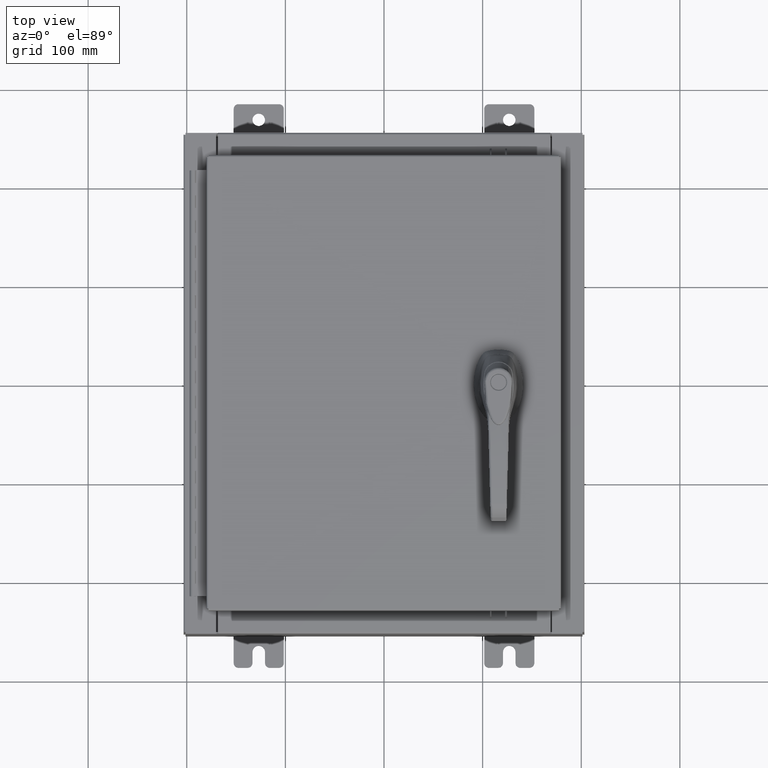
[diagram: clean part render]
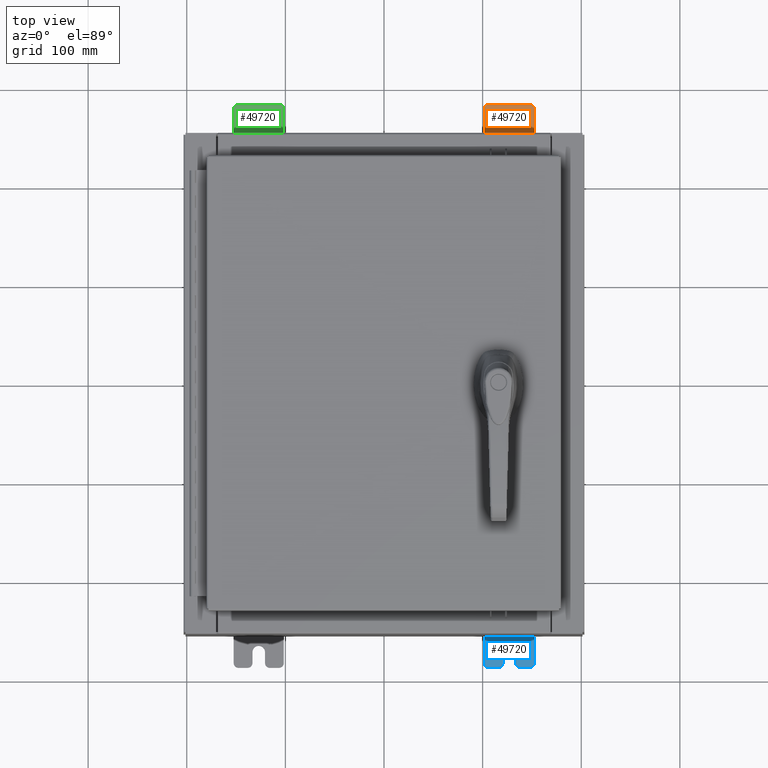
[diagram: same view with three faces highlighted in distinct colors, each labeled with its STEP entity id]
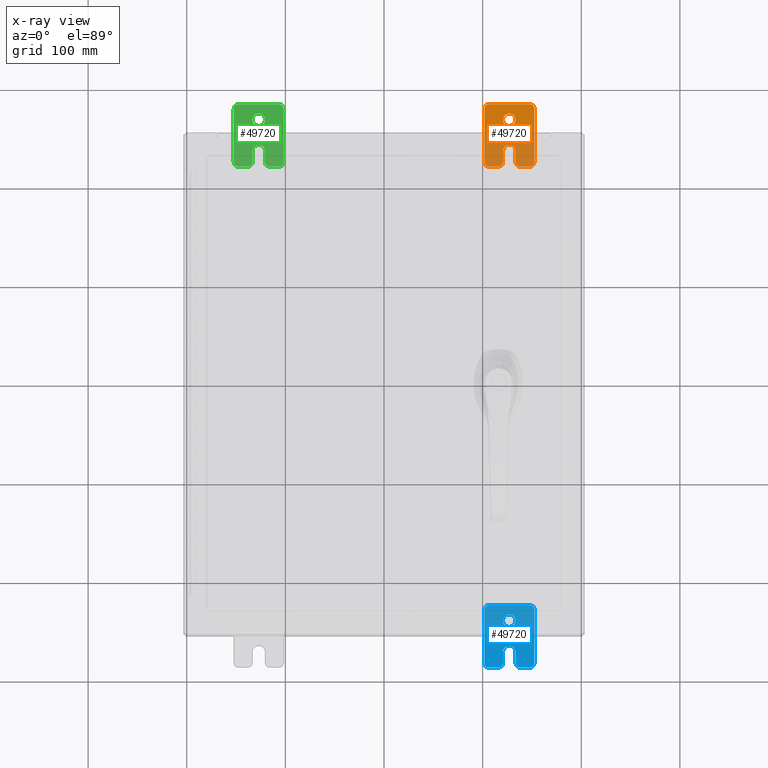
[diagram: x-ray of the same camera — body ghosted, the three highlighted faces saturated]
A machine part, top view with three faces highlighted in distinct colors.
The next image is the same camera in x-ray (body ghosted, the three faces saturated) — at least one of them is partly hidden behind the body in this view.
Their STEP definitions:

[orange] entity #49720 — the highlighted planar face has unit normal (0, 0, 1).
#481 = EDGE_CURVE ( 'NONE', #62604, #34318, #47362, .T. ) ;
#1160 = CARTESIAN_POINT ( 'NONE',  ( 0.0000000000000000000, -1.060000000000003400, -0.4400000000000005000 ) ) ;
#1921 = VERTEX_POINT ( 'NONE', #33607 ) ;
#2991 = AXIS2_PLACEMENT_3D ( 'NONE', #13137, #72066, #21588 ) ;
#3061 = ORIENTED_EDGE ( 'NONE', *, *, #70109, .T. ) ;
#3523 = CARTESIAN_POINT ( 'NONE',  ( 0.0000000000000000000, -1.060000000000004500, -1.000000000000006400 ) ) ;
#4193 = DIRECTION ( 'NONE',  ( -0.0000000000000000000, 0.0000000000000000000, -1.000000000000000000 ) ) ;
#4245 = VERTEX_POINT ( 'NONE', #107363 ) ;
#4334 = LINE ( 'NONE', #71824, #26743 ) ;
#4597 = CARTESIAN_POINT ( 'NONE',  ( 0.0000000000000000000, -1.250000000000002200, 0.9999999999999992200 ) ) ;
#4652 = FACE_BOUND ( 'NONE', #55792, .T. ) ;
#5022 = CARTESIAN_POINT ( 'NONE',  ( 0.0000000000000000000, -1.250000000000002200, 0.9999999999999992200 ) ) ;
#5243 = VERTEX_POINT ( 'NONE', #35462 ) ;
#5659 = DIRECTION ( 'NONE',  ( -5.163192708025533800E-017, 0.0000000000000000000, -1.000000000000000000 ) ) ;
#6952 = LINE ( 'NONE', #31407, #71581 ) ;
#7288 = FACE_OUTER_BOUND ( 'NONE', #72706, .T. ) ;
#8271 = DIRECTION ( 'NONE',  ( 0.0000000000000000000, 0.0000000000000000000, -1.000000000000000000 ) ) ;
#8613 = AXIS2_PLACEMENT_3D ( 'NONE', #106686, #56127, #5659 ) ;
#8744 = EDGE_CURVE ( 'NONE', #1921, #5243, #37294, .T. ) ;
#9646 = DIRECTION ( 'NONE',  ( 0.0000000000000000000, 0.0000000000000000000, -1.000000000000000000 ) ) ;
#11596 = VERTEX_POINT ( 'NONE', #59253 ) ;
#12673 = EDGE_CURVE ( 'NONE', #87092, #54416, #26256, .T. ) ;
#13088 = CARTESIAN_POINT ( 'NONE',  ( 6.829619984160658000E-017, -1.250000000000003800, 0.2500000000000005000 ) ) ;
#13137 = CARTESIAN_POINT ( 'NONE',  ( 0.0000000000000000000, -1.060000000000002100, 0.4400000000000016700 ) ) ;
#13161 = VERTEX_POINT ( 'NONE', #27426 ) ;
#13535 = ORIENTED_EDGE ( 'NONE', *, *, #14613, .T. ) ;
#14613 = EDGE_CURVE ( 'NONE', #34318, #18750, #6952, .T. ) ;
#15250 = DIRECTION ( 'NONE',  ( 0.0000000000000000000, -1.639108796198553600E-015, -1.000000000000000000 ) ) ;
#16067 = AXIS2_PLACEMENT_3D ( 'NONE', #86448, #35909, #94929 ) ;
#16603 = ORIENTED_EDGE ( 'NONE', *, *, #37401, .T. ) ;
#18226 = DIRECTION ( 'NONE',  ( 1.000000000000000000, 0.0000000000000000000, -0.0000000000000000000 ) ) ;
#18750 = VERTEX_POINT ( 'NONE', #34813 ) ;
#21278 = CARTESIAN_POINT ( 'NONE',  ( 4.780733988912460100E-016, -0.6249999999999993300, 5.858939755051854500E-017 ) ) ;
#21588 = DIRECTION ( 'NONE',  ( 0.0000000000000000000, 0.0000000000000000000, -1.000000000000000000 ) ) ;
#22034 = ORIENTED_EDGE ( 'NONE', *, *, #83814, .T. ) ;
#22437 = DIRECTION ( 'NONE',  ( 0.0000000000000000000, 1.639108796198553600E-015, 1.000000000000000000 ) ) ;
#24350 = EDGE_CURVE ( 'NONE', #5243, #1921, #58768, .T. ) ;
#24579 = CARTESIAN_POINT ( 'NONE',  ( 0.0000000000000000000, -0.6249999999999992200, 0.2500000000000005000 ) ) ;
#26256 = CIRCLE ( 'NONE', #70932, 0.2499999999999999200 ) ;
#26743 = VECTOR ( 'NONE', #88509, 39.37007874015748100 ) ;
#27220 = CARTESIAN_POINT ( 'NONE',  ( 4.039428427013647300E-016, 0.6249999999999992200, -9.783840404509077400E-018 ) ) ;
#27426 = CARTESIAN_POINT ( 'NONE',  ( 0.0000000000000000000, 1.249999999999997300, 0.8099999999999935000 ) ) ;
#28971 = CARTESIAN_POINT ( 'NONE',  ( 4.780733988912460100E-016, -0.6249999999999993300, -0.2499999999999993900 ) ) ;
#29200 = CARTESIAN_POINT ( 'NONE',  ( 0.0000000000000000000, 1.059999999999996500, 0.9999999999999953400 ) ) ;
#29610 = EDGE_CURVE ( 'NONE', #75932, #85076, #4334, .T. ) ;
#29757 = DIRECTION ( 'NONE',  ( -6.523827964459551700E-016, -1.000000000000000000, 0.0000000000000000000 ) ) ;
#30115 = DIRECTION ( 'NONE',  ( 0.0000000000000000000, -1.639108796198553600E-015, -1.000000000000000000 ) ) ;
#30879 = VERTEX_POINT ( 'NONE', #69683 ) ;
#31407 = CARTESIAN_POINT ( 'NONE',  ( 0.0000000000000000000, -1.250000000000005600, -1.000000000000006200 ) ) ;
#33607 = CARTESIAN_POINT ( 'NONE',  ( 3.910348609313009100E-016, 0.6249999999999992200, -0.2499999999999999200 ) ) ;
#34318 = VERTEX_POINT ( 'NONE', #3523 ) ;
#34813 = CARTESIAN_POINT ( 'NONE',  ( 0.0000000000000000000, 1.059999999999993400, -1.000000000000010000 ) ) ;
#35031 = ORIENTED_EDGE ( 'NONE', *, *, #97097, .T. ) ;
#35462 = CARTESIAN_POINT ( 'NONE',  ( 4.168508244714285900E-016, 0.6249999999999992200, 0.2499999999999999200 ) ) ;
#35669 = DIRECTION ( 'NONE',  ( -5.163192708025533800E-017, 0.0000000000000000000, -1.000000000000000000 ) ) ;
#35909 = DIRECTION ( 'NONE',  ( 1.000000000000000000, 0.0000000000000000000, -0.0000000000000000000 ) ) ;
#36790 = ORIENTED_EDGE ( 'NONE', *, *, #72073, .T. ) ;
#37294 = CIRCLE ( 'NONE', #8613, 0.2499999999999999200 ) ;
#37401 = EDGE_CURVE ( 'NONE', #85076, #99743, #105072, .T. ) ;
#37438 = DIRECTION ( 'NONE',  ( -6.556435184794182400E-016, -1.000000000000000000, -1.639108796198545600E-016 ) ) ;
#37477 = DIRECTION ( 'NONE',  ( 1.000000000000000000, 0.0000000000000000000, -0.0000000000000000000 ) ) ;
#37590 = CARTESIAN_POINT ( 'NONE',  ( 4.780733988912460100E-016, -0.6249999999999993300, -0.2499999999999998600 ) ) ;
#37651 = LINE ( 'NONE', #5022, #54744 ) ;
#38915 = EDGE_CURVE ( 'NONE', #18750, #72180, #97159, .T. ) ;
#40899 = LINE ( 'NONE', #81407, #63323 ) ;
#41752 = CARTESIAN_POINT ( 'NONE',  ( 0.0000000000000000000, 1.249999999999994700, -0.8100000000000092700 ) ) ;
#42564 = ORIENTED_EDGE ( 'NONE', *, *, #24350, .F. ) ;
#43312 = AXIS2_PLACEMENT_3D ( 'NONE', #109264, #58724, #8271 ) ;
#46215 = CARTESIAN_POINT ( 'NONE',  ( 0.0000000000000000000, 0.0000000000000000000, 0.0000000000000000000 ) ) ;
#47362 = CIRCLE ( 'NONE', #16067, 0.1900000000000011100 ) ;
#49720 = ADVANCED_FACE ( 'NONE', ( #4652, #7288 ), #96744, .T. ) ;
#50529 = ORIENTED_EDGE ( 'NONE', *, *, #481, .T. ) ;
#50757 = CIRCLE ( 'NONE', #102429, 0.1900000000000011100 ) ;
#50975 = EDGE_CURVE ( 'NONE', #54416, #4245, #58542, .T. ) ;
#52108 = ORIENTED_EDGE ( 'NONE', *, *, #12673, .T. ) ;
#53402 = CARTESIAN_POINT ( 'NONE',  ( 0.0000000000000000000, -1.060000000000001200, 0.9999999999999988900 ) ) ;
#54416 = VERTEX_POINT ( 'NONE', #37590 ) ;
#54657 = DIRECTION ( 'NONE',  ( 1.000000000000000000, 0.0000000000000000000, -0.0000000000000000000 ) ) ;
#54744 = VECTOR ( 'NONE', #30115, 39.37007874015748100 ) ;
#55792 = EDGE_LOOP ( 'NONE', ( #98013, #42564 ) ) ;
#55889 = VECTOR ( 'NONE', #37438, 39.37007874015748100 ) ;
#56127 = DIRECTION ( 'NONE',  ( 1.000000000000000000, -0.0000000000000000000, -5.163192708025532000E-017 ) ) ;
#57395 = ORIENTED_EDGE ( 'NONE', *, *, #50975, .T. ) ;
#57405 = VERTEX_POINT ( 'NONE', #57727 ) ;
#57727 = CARTESIAN_POINT ( 'NONE',  ( 1.928684683526972300E-016, -1.060000000000002100, 0.2500000000000005000 ) ) ;
#58542 = LINE ( 'NONE', #28971, #55889 ) ;
#58724 = DIRECTION ( 'NONE',  ( 1.000000000000000000, 0.0000000000000000000, -0.0000000000000000000 ) ) ;
#58768 = CIRCLE ( 'NONE', #63160, 0.2499999999999999200 ) ;
#59253 = CARTESIAN_POINT ( 'NONE',  ( 0.0000000000000000000, -1.250000000000003100, 0.4400000000000020000 ) ) ;
#59584 = AXIS2_PLACEMENT_3D ( 'NONE', #88039, #37477, #96485 ) ;
#60119 = DIRECTION ( 'NONE',  ( 1.000000000000000000, 0.0000000000000000000, -0.0000000000000000000 ) ) ;
#60191 = VECTOR ( 'NONE', #63520, 39.37007874015748100 ) ;
#60371 = EDGE_CURVE ( 'NONE', #13161, #75932, #80758, .T. ) ;
#62604 = VERTEX_POINT ( 'NONE', #69588 ) ;
#62865 = LINE ( 'NONE', #13088, #60191 ) ;
#63023 = LINE ( 'NONE', #4597, #107878 ) ;
#63160 = AXIS2_PLACEMENT_3D ( 'NONE', #27220, #86205, #35669 ) ;
#63323 = VECTOR ( 'NONE', #22437, 39.37007874015748100 ) ;
#63520 = DIRECTION ( 'NONE',  ( 6.556435184794182400E-016, 1.000000000000000000, 0.0000000000000000000 ) ) ;
#64856 = ORIENTED_EDGE ( 'NONE', *, *, #103186, .T. ) ;
#65171 = CARTESIAN_POINT ( 'NONE',  ( 0.0000000000000000000, -1.250000000000002400, 0.8099999999999980500 ) ) ;
#68485 = CIRCLE ( 'NONE', #2991, 0.1900000000000011400 ) ;
#68671 = CARTESIAN_POINT ( 'NONE',  ( 0.0000000000000000000, 1.059999999999996300, 0.8099999999999938400 ) ) ;
#69333 = AXIS2_PLACEMENT_3D ( 'NONE', #46215, #54657, #4193 ) ;
#69588 = CARTESIAN_POINT ( 'NONE',  ( 0.0000000000000000000, -1.250000000000005300, -0.8100000000000047200 ) ) ;
#69683 = CARTESIAN_POINT ( 'NONE',  ( 0.0000000000000000000, -1.250000000000004700, -0.4400000000000002200 ) ) ;
#70109 = EDGE_CURVE ( 'NONE', #11596, #57405, #68485, .T. ) ;
#70932 = AXIS2_PLACEMENT_3D ( 'NONE', #21278, #80249, #29757 ) ;
#71581 = VECTOR ( 'NONE', #107341, 39.37007874015748100 ) ;
#71824 = CARTESIAN_POINT ( 'NONE',  ( 0.0000000000000000000, 1.249999999999997600, 0.9999999999999951200 ) ) ;
#72066 = DIRECTION ( 'NONE',  ( 1.000000000000000000, 0.0000000000000000000, -0.0000000000000000000 ) ) ;
#72073 = EDGE_CURVE ( 'NONE', #99743, #11596, #63023, .T. ) ;
#72180 = VERTEX_POINT ( 'NONE', #41752 ) ;
#72706 = EDGE_LOOP ( 'NONE', ( #73115, #16603, #36790, #3061, #95287, #52108, #57395, #22034, #35031, #50529, #13535, #80788, #64856, #95490 ) ) ;
#73115 = ORIENTED_EDGE ( 'NONE', *, *, #29610, .T. ) ;
#75932 = VERTEX_POINT ( 'NONE', #29200 ) ;
#77171 = DIRECTION ( 'NONE',  ( 0.0000000000000000000, 0.0000000000000000000, -1.000000000000000000 ) ) ;
#80249 = DIRECTION ( 'NONE',  ( -1.000000000000000000, 6.523827964459549700E-016, 5.163192708025532000E-017 ) ) ;
#80758 = CIRCLE ( 'NONE', #85333, 0.1900000000000011100 ) ;
#80788 = ORIENTED_EDGE ( 'NONE', *, *, #38915, .T. ) ;
#81407 = CARTESIAN_POINT ( 'NONE',  ( 0.0000000000000000000, 1.249999999999994200, -1.000000000000010400 ) ) ;
#82155 = EDGE_CURVE ( 'NONE', #57405, #87092, #62865, .T. ) ;
#83814 = EDGE_CURVE ( 'NONE', #4245, #30879, #50757, .T. ) ;
#85076 = VERTEX_POINT ( 'NONE', #53402 ) ;
#85333 = AXIS2_PLACEMENT_3D ( 'NONE', #68671, #18226, #77171 ) ;
#86205 = DIRECTION ( 'NONE',  ( 1.000000000000000000, -0.0000000000000000000, -5.163192708025532000E-017 ) ) ;
#86448 = CARTESIAN_POINT ( 'NONE',  ( 0.0000000000000000000, -1.060000000000004100, -0.8100000000000050500 ) ) ;
#87092 = VERTEX_POINT ( 'NONE', #24579 ) ;
#88039 = CARTESIAN_POINT ( 'NONE',  ( 0.0000000000000000000, 1.059999999999993600, -0.8100000000000089400 ) ) ;
#88509 = DIRECTION ( 'NONE',  ( 0.0000000000000000000, -1.000000000000000000, 1.639108796198558100E-015 ) ) ;
#94929 = DIRECTION ( 'NONE',  ( 0.0000000000000000000, 0.0000000000000000000, -1.000000000000000000 ) ) ;
#95287 = ORIENTED_EDGE ( 'NONE', *, *, #82155, .T. ) ;
#95490 = ORIENTED_EDGE ( 'NONE', *, *, #60371, .T. ) ;
#96485 = DIRECTION ( 'NONE',  ( 0.0000000000000000000, 0.0000000000000000000, -1.000000000000000000 ) ) ;
#96744 = PLANE ( 'NONE',  #69333 ) ;
#97097 = EDGE_CURVE ( 'NONE', #30879, #62604, #37651, .T. ) ;
#97159 = CIRCLE ( 'NONE', #59584, 0.1900000000000011100 ) ;
#98013 = ORIENTED_EDGE ( 'NONE', *, *, #8744, .F. ) ;
#99743 = VERTEX_POINT ( 'NONE', #65171 ) ;
#102429 = AXIS2_PLACEMENT_3D ( 'NONE', #1160, #60119, #9646 ) ;
#103186 = EDGE_CURVE ( 'NONE', #72180, #13161, #40899, .T. ) ;
#105072 = CIRCLE ( 'NONE', #43312, 0.1900000000000011100 ) ;
#106686 = CARTESIAN_POINT ( 'NONE',  ( 4.039428427013647300E-016, 0.6249999999999992200, -9.783840404509077400E-018 ) ) ;
#107341 = DIRECTION ( 'NONE',  ( 0.0000000000000000000, 1.000000000000000000, -1.639108796198558100E-015 ) ) ;
#107363 = CARTESIAN_POINT ( 'NONE',  ( 1.928684683526964400E-016, -1.060000000000003400, -0.2499999999999994400 ) ) ;
#107878 = VECTOR ( 'NONE', #15250, 39.37007874015748100 ) ;
#109264 = CARTESIAN_POINT ( 'NONE',  ( 0.0000000000000000000, -1.060000000000001600, 0.8099999999999978300 ) ) ;

[blue] entity #49720 — the highlighted planar face has unit normal (0, 0, 1).
#481 = EDGE_CURVE ( 'NONE', #62604, #34318, #47362, .T. ) ;
#1160 = CARTESIAN_POINT ( 'NONE',  ( 0.0000000000000000000, -1.060000000000003400, -0.4400000000000005000 ) ) ;
#1921 = VERTEX_POINT ( 'NONE', #33607 ) ;
#2991 = AXIS2_PLACEMENT_3D ( 'NONE', #13137, #72066, #21588 ) ;
#3061 = ORIENTED_EDGE ( 'NONE', *, *, #70109, .T. ) ;
#3523 = CARTESIAN_POINT ( 'NONE',  ( 0.0000000000000000000, -1.060000000000004500, -1.000000000000006400 ) ) ;
#4193 = DIRECTION ( 'NONE',  ( -0.0000000000000000000, 0.0000000000000000000, -1.000000000000000000 ) ) ;
#4245 = VERTEX_POINT ( 'NONE', #107363 ) ;
#4334 = LINE ( 'NONE', #71824, #26743 ) ;
#4597 = CARTESIAN_POINT ( 'NONE',  ( 0.0000000000000000000, -1.250000000000002200, 0.9999999999999992200 ) ) ;
#4652 = FACE_BOUND ( 'NONE', #55792, .T. ) ;
#5022 = CARTESIAN_POINT ( 'NONE',  ( 0.0000000000000000000, -1.250000000000002200, 0.9999999999999992200 ) ) ;
#5243 = VERTEX_POINT ( 'NONE', #35462 ) ;
#5659 = DIRECTION ( 'NONE',  ( -5.163192708025533800E-017, 0.0000000000000000000, -1.000000000000000000 ) ) ;
#6952 = LINE ( 'NONE', #31407, #71581 ) ;
#7288 = FACE_OUTER_BOUND ( 'NONE', #72706, .T. ) ;
#8271 = DIRECTION ( 'NONE',  ( 0.0000000000000000000, 0.0000000000000000000, -1.000000000000000000 ) ) ;
#8613 = AXIS2_PLACEMENT_3D ( 'NONE', #106686, #56127, #5659 ) ;
#8744 = EDGE_CURVE ( 'NONE', #1921, #5243, #37294, .T. ) ;
#9646 = DIRECTION ( 'NONE',  ( 0.0000000000000000000, 0.0000000000000000000, -1.000000000000000000 ) ) ;
#11596 = VERTEX_POINT ( 'NONE', #59253 ) ;
#12673 = EDGE_CURVE ( 'NONE', #87092, #54416, #26256, .T. ) ;
#13088 = CARTESIAN_POINT ( 'NONE',  ( 6.829619984160658000E-017, -1.250000000000003800, 0.2500000000000005000 ) ) ;
#13137 = CARTESIAN_POINT ( 'NONE',  ( 0.0000000000000000000, -1.060000000000002100, 0.4400000000000016700 ) ) ;
#13161 = VERTEX_POINT ( 'NONE', #27426 ) ;
#13535 = ORIENTED_EDGE ( 'NONE', *, *, #14613, .T. ) ;
#14613 = EDGE_CURVE ( 'NONE', #34318, #18750, #6952, .T. ) ;
#15250 = DIRECTION ( 'NONE',  ( 0.0000000000000000000, -1.639108796198553600E-015, -1.000000000000000000 ) ) ;
#16067 = AXIS2_PLACEMENT_3D ( 'NONE', #86448, #35909, #94929 ) ;
#16603 = ORIENTED_EDGE ( 'NONE', *, *, #37401, .T. ) ;
#18226 = DIRECTION ( 'NONE',  ( 1.000000000000000000, 0.0000000000000000000, -0.0000000000000000000 ) ) ;
#18750 = VERTEX_POINT ( 'NONE', #34813 ) ;
#21278 = CARTESIAN_POINT ( 'NONE',  ( 4.780733988912460100E-016, -0.6249999999999993300, 5.858939755051854500E-017 ) ) ;
#21588 = DIRECTION ( 'NONE',  ( 0.0000000000000000000, 0.0000000000000000000, -1.000000000000000000 ) ) ;
#22034 = ORIENTED_EDGE ( 'NONE', *, *, #83814, .T. ) ;
#22437 = DIRECTION ( 'NONE',  ( 0.0000000000000000000, 1.639108796198553600E-015, 1.000000000000000000 ) ) ;
#24350 = EDGE_CURVE ( 'NONE', #5243, #1921, #58768, .T. ) ;
#24579 = CARTESIAN_POINT ( 'NONE',  ( 0.0000000000000000000, -0.6249999999999992200, 0.2500000000000005000 ) ) ;
#26256 = CIRCLE ( 'NONE', #70932, 0.2499999999999999200 ) ;
#26743 = VECTOR ( 'NONE', #88509, 39.37007874015748100 ) ;
#27220 = CARTESIAN_POINT ( 'NONE',  ( 4.039428427013647300E-016, 0.6249999999999992200, -9.783840404509077400E-018 ) ) ;
#27426 = CARTESIAN_POINT ( 'NONE',  ( 0.0000000000000000000, 1.249999999999997300, 0.8099999999999935000 ) ) ;
#28971 = CARTESIAN_POINT ( 'NONE',  ( 4.780733988912460100E-016, -0.6249999999999993300, -0.2499999999999993900 ) ) ;
#29200 = CARTESIAN_POINT ( 'NONE',  ( 0.0000000000000000000, 1.059999999999996500, 0.9999999999999953400 ) ) ;
#29610 = EDGE_CURVE ( 'NONE', #75932, #85076, #4334, .T. ) ;
#29757 = DIRECTION ( 'NONE',  ( -6.523827964459551700E-016, -1.000000000000000000, 0.0000000000000000000 ) ) ;
#30115 = DIRECTION ( 'NONE',  ( 0.0000000000000000000, -1.639108796198553600E-015, -1.000000000000000000 ) ) ;
#30879 = VERTEX_POINT ( 'NONE', #69683 ) ;
#31407 = CARTESIAN_POINT ( 'NONE',  ( 0.0000000000000000000, -1.250000000000005600, -1.000000000000006200 ) ) ;
#33607 = CARTESIAN_POINT ( 'NONE',  ( 3.910348609313009100E-016, 0.6249999999999992200, -0.2499999999999999200 ) ) ;
#34318 = VERTEX_POINT ( 'NONE', #3523 ) ;
#34813 = CARTESIAN_POINT ( 'NONE',  ( 0.0000000000000000000, 1.059999999999993400, -1.000000000000010000 ) ) ;
#35031 = ORIENTED_EDGE ( 'NONE', *, *, #97097, .T. ) ;
#35462 = CARTESIAN_POINT ( 'NONE',  ( 4.168508244714285900E-016, 0.6249999999999992200, 0.2499999999999999200 ) ) ;
#35669 = DIRECTION ( 'NONE',  ( -5.163192708025533800E-017, 0.0000000000000000000, -1.000000000000000000 ) ) ;
#35909 = DIRECTION ( 'NONE',  ( 1.000000000000000000, 0.0000000000000000000, -0.0000000000000000000 ) ) ;
#36790 = ORIENTED_EDGE ( 'NONE', *, *, #72073, .T. ) ;
#37294 = CIRCLE ( 'NONE', #8613, 0.2499999999999999200 ) ;
#37401 = EDGE_CURVE ( 'NONE', #85076, #99743, #105072, .T. ) ;
#37438 = DIRECTION ( 'NONE',  ( -6.556435184794182400E-016, -1.000000000000000000, -1.639108796198545600E-016 ) ) ;
#37477 = DIRECTION ( 'NONE',  ( 1.000000000000000000, 0.0000000000000000000, -0.0000000000000000000 ) ) ;
#37590 = CARTESIAN_POINT ( 'NONE',  ( 4.780733988912460100E-016, -0.6249999999999993300, -0.2499999999999998600 ) ) ;
#37651 = LINE ( 'NONE', #5022, #54744 ) ;
#38915 = EDGE_CURVE ( 'NONE', #18750, #72180, #97159, .T. ) ;
#40899 = LINE ( 'NONE', #81407, #63323 ) ;
#41752 = CARTESIAN_POINT ( 'NONE',  ( 0.0000000000000000000, 1.249999999999994700, -0.8100000000000092700 ) ) ;
#42564 = ORIENTED_EDGE ( 'NONE', *, *, #24350, .F. ) ;
#43312 = AXIS2_PLACEMENT_3D ( 'NONE', #109264, #58724, #8271 ) ;
#46215 = CARTESIAN_POINT ( 'NONE',  ( 0.0000000000000000000, 0.0000000000000000000, 0.0000000000000000000 ) ) ;
#47362 = CIRCLE ( 'NONE', #16067, 0.1900000000000011100 ) ;
#49720 = ADVANCED_FACE ( 'NONE', ( #4652, #7288 ), #96744, .T. ) ;
#50529 = ORIENTED_EDGE ( 'NONE', *, *, #481, .T. ) ;
#50757 = CIRCLE ( 'NONE', #102429, 0.1900000000000011100 ) ;
#50975 = EDGE_CURVE ( 'NONE', #54416, #4245, #58542, .T. ) ;
#52108 = ORIENTED_EDGE ( 'NONE', *, *, #12673, .T. ) ;
#53402 = CARTESIAN_POINT ( 'NONE',  ( 0.0000000000000000000, -1.060000000000001200, 0.9999999999999988900 ) ) ;
#54416 = VERTEX_POINT ( 'NONE', #37590 ) ;
#54657 = DIRECTION ( 'NONE',  ( 1.000000000000000000, 0.0000000000000000000, -0.0000000000000000000 ) ) ;
#54744 = VECTOR ( 'NONE', #30115, 39.37007874015748100 ) ;
#55792 = EDGE_LOOP ( 'NONE', ( #98013, #42564 ) ) ;
#55889 = VECTOR ( 'NONE', #37438, 39.37007874015748100 ) ;
#56127 = DIRECTION ( 'NONE',  ( 1.000000000000000000, -0.0000000000000000000, -5.163192708025532000E-017 ) ) ;
#57395 = ORIENTED_EDGE ( 'NONE', *, *, #50975, .T. ) ;
#57405 = VERTEX_POINT ( 'NONE', #57727 ) ;
#57727 = CARTESIAN_POINT ( 'NONE',  ( 1.928684683526972300E-016, -1.060000000000002100, 0.2500000000000005000 ) ) ;
#58542 = LINE ( 'NONE', #28971, #55889 ) ;
#58724 = DIRECTION ( 'NONE',  ( 1.000000000000000000, 0.0000000000000000000, -0.0000000000000000000 ) ) ;
#58768 = CIRCLE ( 'NONE', #63160, 0.2499999999999999200 ) ;
#59253 = CARTESIAN_POINT ( 'NONE',  ( 0.0000000000000000000, -1.250000000000003100, 0.4400000000000020000 ) ) ;
#59584 = AXIS2_PLACEMENT_3D ( 'NONE', #88039, #37477, #96485 ) ;
#60119 = DIRECTION ( 'NONE',  ( 1.000000000000000000, 0.0000000000000000000, -0.0000000000000000000 ) ) ;
#60191 = VECTOR ( 'NONE', #63520, 39.37007874015748100 ) ;
#60371 = EDGE_CURVE ( 'NONE', #13161, #75932, #80758, .T. ) ;
#62604 = VERTEX_POINT ( 'NONE', #69588 ) ;
#62865 = LINE ( 'NONE', #13088, #60191 ) ;
#63023 = LINE ( 'NONE', #4597, #107878 ) ;
#63160 = AXIS2_PLACEMENT_3D ( 'NONE', #27220, #86205, #35669 ) ;
#63323 = VECTOR ( 'NONE', #22437, 39.37007874015748100 ) ;
#63520 = DIRECTION ( 'NONE',  ( 6.556435184794182400E-016, 1.000000000000000000, 0.0000000000000000000 ) ) ;
#64856 = ORIENTED_EDGE ( 'NONE', *, *, #103186, .T. ) ;
#65171 = CARTESIAN_POINT ( 'NONE',  ( 0.0000000000000000000, -1.250000000000002400, 0.8099999999999980500 ) ) ;
#68485 = CIRCLE ( 'NONE', #2991, 0.1900000000000011400 ) ;
#68671 = CARTESIAN_POINT ( 'NONE',  ( 0.0000000000000000000, 1.059999999999996300, 0.8099999999999938400 ) ) ;
#69333 = AXIS2_PLACEMENT_3D ( 'NONE', #46215, #54657, #4193 ) ;
#69588 = CARTESIAN_POINT ( 'NONE',  ( 0.0000000000000000000, -1.250000000000005300, -0.8100000000000047200 ) ) ;
#69683 = CARTESIAN_POINT ( 'NONE',  ( 0.0000000000000000000, -1.250000000000004700, -0.4400000000000002200 ) ) ;
#70109 = EDGE_CURVE ( 'NONE', #11596, #57405, #68485, .T. ) ;
#70932 = AXIS2_PLACEMENT_3D ( 'NONE', #21278, #80249, #29757 ) ;
#71581 = VECTOR ( 'NONE', #107341, 39.37007874015748100 ) ;
#71824 = CARTESIAN_POINT ( 'NONE',  ( 0.0000000000000000000, 1.249999999999997600, 0.9999999999999951200 ) ) ;
#72066 = DIRECTION ( 'NONE',  ( 1.000000000000000000, 0.0000000000000000000, -0.0000000000000000000 ) ) ;
#72073 = EDGE_CURVE ( 'NONE', #99743, #11596, #63023, .T. ) ;
#72180 = VERTEX_POINT ( 'NONE', #41752 ) ;
#72706 = EDGE_LOOP ( 'NONE', ( #73115, #16603, #36790, #3061, #95287, #52108, #57395, #22034, #35031, #50529, #13535, #80788, #64856, #95490 ) ) ;
#73115 = ORIENTED_EDGE ( 'NONE', *, *, #29610, .T. ) ;
#75932 = VERTEX_POINT ( 'NONE', #29200 ) ;
#77171 = DIRECTION ( 'NONE',  ( 0.0000000000000000000, 0.0000000000000000000, -1.000000000000000000 ) ) ;
#80249 = DIRECTION ( 'NONE',  ( -1.000000000000000000, 6.523827964459549700E-016, 5.163192708025532000E-017 ) ) ;
#80758 = CIRCLE ( 'NONE', #85333, 0.1900000000000011100 ) ;
#80788 = ORIENTED_EDGE ( 'NONE', *, *, #38915, .T. ) ;
#81407 = CARTESIAN_POINT ( 'NONE',  ( 0.0000000000000000000, 1.249999999999994200, -1.000000000000010400 ) ) ;
#82155 = EDGE_CURVE ( 'NONE', #57405, #87092, #62865, .T. ) ;
#83814 = EDGE_CURVE ( 'NONE', #4245, #30879, #50757, .T. ) ;
#85076 = VERTEX_POINT ( 'NONE', #53402 ) ;
#85333 = AXIS2_PLACEMENT_3D ( 'NONE', #68671, #18226, #77171 ) ;
#86205 = DIRECTION ( 'NONE',  ( 1.000000000000000000, -0.0000000000000000000, -5.163192708025532000E-017 ) ) ;
#86448 = CARTESIAN_POINT ( 'NONE',  ( 0.0000000000000000000, -1.060000000000004100, -0.8100000000000050500 ) ) ;
#87092 = VERTEX_POINT ( 'NONE', #24579 ) ;
#88039 = CARTESIAN_POINT ( 'NONE',  ( 0.0000000000000000000, 1.059999999999993600, -0.8100000000000089400 ) ) ;
#88509 = DIRECTION ( 'NONE',  ( 0.0000000000000000000, -1.000000000000000000, 1.639108796198558100E-015 ) ) ;
#94929 = DIRECTION ( 'NONE',  ( 0.0000000000000000000, 0.0000000000000000000, -1.000000000000000000 ) ) ;
#95287 = ORIENTED_EDGE ( 'NONE', *, *, #82155, .T. ) ;
#95490 = ORIENTED_EDGE ( 'NONE', *, *, #60371, .T. ) ;
#96485 = DIRECTION ( 'NONE',  ( 0.0000000000000000000, 0.0000000000000000000, -1.000000000000000000 ) ) ;
#96744 = PLANE ( 'NONE',  #69333 ) ;
#97097 = EDGE_CURVE ( 'NONE', #30879, #62604, #37651, .T. ) ;
#97159 = CIRCLE ( 'NONE', #59584, 0.1900000000000011100 ) ;
#98013 = ORIENTED_EDGE ( 'NONE', *, *, #8744, .F. ) ;
#99743 = VERTEX_POINT ( 'NONE', #65171 ) ;
#102429 = AXIS2_PLACEMENT_3D ( 'NONE', #1160, #60119, #9646 ) ;
#103186 = EDGE_CURVE ( 'NONE', #72180, #13161, #40899, .T. ) ;
#105072 = CIRCLE ( 'NONE', #43312, 0.1900000000000011100 ) ;
#106686 = CARTESIAN_POINT ( 'NONE',  ( 4.039428427013647300E-016, 0.6249999999999992200, -9.783840404509077400E-018 ) ) ;
#107341 = DIRECTION ( 'NONE',  ( 0.0000000000000000000, 1.000000000000000000, -1.639108796198558100E-015 ) ) ;
#107363 = CARTESIAN_POINT ( 'NONE',  ( 1.928684683526964400E-016, -1.060000000000003400, -0.2499999999999994400 ) ) ;
#107878 = VECTOR ( 'NONE', #15250, 39.37007874015748100 ) ;
#109264 = CARTESIAN_POINT ( 'NONE',  ( 0.0000000000000000000, -1.060000000000001600, 0.8099999999999978300 ) ) ;

[green] entity #49720 — the highlighted planar face has unit normal (0, 0, 1).
#481 = EDGE_CURVE ( 'NONE', #62604, #34318, #47362, .T. ) ;
#1160 = CARTESIAN_POINT ( 'NONE',  ( 0.0000000000000000000, -1.060000000000003400, -0.4400000000000005000 ) ) ;
#1921 = VERTEX_POINT ( 'NONE', #33607 ) ;
#2991 = AXIS2_PLACEMENT_3D ( 'NONE', #13137, #72066, #21588 ) ;
#3061 = ORIENTED_EDGE ( 'NONE', *, *, #70109, .T. ) ;
#3523 = CARTESIAN_POINT ( 'NONE',  ( 0.0000000000000000000, -1.060000000000004500, -1.000000000000006400 ) ) ;
#4193 = DIRECTION ( 'NONE',  ( -0.0000000000000000000, 0.0000000000000000000, -1.000000000000000000 ) ) ;
#4245 = VERTEX_POINT ( 'NONE', #107363 ) ;
#4334 = LINE ( 'NONE', #71824, #26743 ) ;
#4597 = CARTESIAN_POINT ( 'NONE',  ( 0.0000000000000000000, -1.250000000000002200, 0.9999999999999992200 ) ) ;
#4652 = FACE_BOUND ( 'NONE', #55792, .T. ) ;
#5022 = CARTESIAN_POINT ( 'NONE',  ( 0.0000000000000000000, -1.250000000000002200, 0.9999999999999992200 ) ) ;
#5243 = VERTEX_POINT ( 'NONE', #35462 ) ;
#5659 = DIRECTION ( 'NONE',  ( -5.163192708025533800E-017, 0.0000000000000000000, -1.000000000000000000 ) ) ;
#6952 = LINE ( 'NONE', #31407, #71581 ) ;
#7288 = FACE_OUTER_BOUND ( 'NONE', #72706, .T. ) ;
#8271 = DIRECTION ( 'NONE',  ( 0.0000000000000000000, 0.0000000000000000000, -1.000000000000000000 ) ) ;
#8613 = AXIS2_PLACEMENT_3D ( 'NONE', #106686, #56127, #5659 ) ;
#8744 = EDGE_CURVE ( 'NONE', #1921, #5243, #37294, .T. ) ;
#9646 = DIRECTION ( 'NONE',  ( 0.0000000000000000000, 0.0000000000000000000, -1.000000000000000000 ) ) ;
#11596 = VERTEX_POINT ( 'NONE', #59253 ) ;
#12673 = EDGE_CURVE ( 'NONE', #87092, #54416, #26256, .T. ) ;
#13088 = CARTESIAN_POINT ( 'NONE',  ( 6.829619984160658000E-017, -1.250000000000003800, 0.2500000000000005000 ) ) ;
#13137 = CARTESIAN_POINT ( 'NONE',  ( 0.0000000000000000000, -1.060000000000002100, 0.4400000000000016700 ) ) ;
#13161 = VERTEX_POINT ( 'NONE', #27426 ) ;
#13535 = ORIENTED_EDGE ( 'NONE', *, *, #14613, .T. ) ;
#14613 = EDGE_CURVE ( 'NONE', #34318, #18750, #6952, .T. ) ;
#15250 = DIRECTION ( 'NONE',  ( 0.0000000000000000000, -1.639108796198553600E-015, -1.000000000000000000 ) ) ;
#16067 = AXIS2_PLACEMENT_3D ( 'NONE', #86448, #35909, #94929 ) ;
#16603 = ORIENTED_EDGE ( 'NONE', *, *, #37401, .T. ) ;
#18226 = DIRECTION ( 'NONE',  ( 1.000000000000000000, 0.0000000000000000000, -0.0000000000000000000 ) ) ;
#18750 = VERTEX_POINT ( 'NONE', #34813 ) ;
#21278 = CARTESIAN_POINT ( 'NONE',  ( 4.780733988912460100E-016, -0.6249999999999993300, 5.858939755051854500E-017 ) ) ;
#21588 = DIRECTION ( 'NONE',  ( 0.0000000000000000000, 0.0000000000000000000, -1.000000000000000000 ) ) ;
#22034 = ORIENTED_EDGE ( 'NONE', *, *, #83814, .T. ) ;
#22437 = DIRECTION ( 'NONE',  ( 0.0000000000000000000, 1.639108796198553600E-015, 1.000000000000000000 ) ) ;
#24350 = EDGE_CURVE ( 'NONE', #5243, #1921, #58768, .T. ) ;
#24579 = CARTESIAN_POINT ( 'NONE',  ( 0.0000000000000000000, -0.6249999999999992200, 0.2500000000000005000 ) ) ;
#26256 = CIRCLE ( 'NONE', #70932, 0.2499999999999999200 ) ;
#26743 = VECTOR ( 'NONE', #88509, 39.37007874015748100 ) ;
#27220 = CARTESIAN_POINT ( 'NONE',  ( 4.039428427013647300E-016, 0.6249999999999992200, -9.783840404509077400E-018 ) ) ;
#27426 = CARTESIAN_POINT ( 'NONE',  ( 0.0000000000000000000, 1.249999999999997300, 0.8099999999999935000 ) ) ;
#28971 = CARTESIAN_POINT ( 'NONE',  ( 4.780733988912460100E-016, -0.6249999999999993300, -0.2499999999999993900 ) ) ;
#29200 = CARTESIAN_POINT ( 'NONE',  ( 0.0000000000000000000, 1.059999999999996500, 0.9999999999999953400 ) ) ;
#29610 = EDGE_CURVE ( 'NONE', #75932, #85076, #4334, .T. ) ;
#29757 = DIRECTION ( 'NONE',  ( -6.523827964459551700E-016, -1.000000000000000000, 0.0000000000000000000 ) ) ;
#30115 = DIRECTION ( 'NONE',  ( 0.0000000000000000000, -1.639108796198553600E-015, -1.000000000000000000 ) ) ;
#30879 = VERTEX_POINT ( 'NONE', #69683 ) ;
#31407 = CARTESIAN_POINT ( 'NONE',  ( 0.0000000000000000000, -1.250000000000005600, -1.000000000000006200 ) ) ;
#33607 = CARTESIAN_POINT ( 'NONE',  ( 3.910348609313009100E-016, 0.6249999999999992200, -0.2499999999999999200 ) ) ;
#34318 = VERTEX_POINT ( 'NONE', #3523 ) ;
#34813 = CARTESIAN_POINT ( 'NONE',  ( 0.0000000000000000000, 1.059999999999993400, -1.000000000000010000 ) ) ;
#35031 = ORIENTED_EDGE ( 'NONE', *, *, #97097, .T. ) ;
#35462 = CARTESIAN_POINT ( 'NONE',  ( 4.168508244714285900E-016, 0.6249999999999992200, 0.2499999999999999200 ) ) ;
#35669 = DIRECTION ( 'NONE',  ( -5.163192708025533800E-017, 0.0000000000000000000, -1.000000000000000000 ) ) ;
#35909 = DIRECTION ( 'NONE',  ( 1.000000000000000000, 0.0000000000000000000, -0.0000000000000000000 ) ) ;
#36790 = ORIENTED_EDGE ( 'NONE', *, *, #72073, .T. ) ;
#37294 = CIRCLE ( 'NONE', #8613, 0.2499999999999999200 ) ;
#37401 = EDGE_CURVE ( 'NONE', #85076, #99743, #105072, .T. ) ;
#37438 = DIRECTION ( 'NONE',  ( -6.556435184794182400E-016, -1.000000000000000000, -1.639108796198545600E-016 ) ) ;
#37477 = DIRECTION ( 'NONE',  ( 1.000000000000000000, 0.0000000000000000000, -0.0000000000000000000 ) ) ;
#37590 = CARTESIAN_POINT ( 'NONE',  ( 4.780733988912460100E-016, -0.6249999999999993300, -0.2499999999999998600 ) ) ;
#37651 = LINE ( 'NONE', #5022, #54744 ) ;
#38915 = EDGE_CURVE ( 'NONE', #18750, #72180, #97159, .T. ) ;
#40899 = LINE ( 'NONE', #81407, #63323 ) ;
#41752 = CARTESIAN_POINT ( 'NONE',  ( 0.0000000000000000000, 1.249999999999994700, -0.8100000000000092700 ) ) ;
#42564 = ORIENTED_EDGE ( 'NONE', *, *, #24350, .F. ) ;
#43312 = AXIS2_PLACEMENT_3D ( 'NONE', #109264, #58724, #8271 ) ;
#46215 = CARTESIAN_POINT ( 'NONE',  ( 0.0000000000000000000, 0.0000000000000000000, 0.0000000000000000000 ) ) ;
#47362 = CIRCLE ( 'NONE', #16067, 0.1900000000000011100 ) ;
#49720 = ADVANCED_FACE ( 'NONE', ( #4652, #7288 ), #96744, .T. ) ;
#50529 = ORIENTED_EDGE ( 'NONE', *, *, #481, .T. ) ;
#50757 = CIRCLE ( 'NONE', #102429, 0.1900000000000011100 ) ;
#50975 = EDGE_CURVE ( 'NONE', #54416, #4245, #58542, .T. ) ;
#52108 = ORIENTED_EDGE ( 'NONE', *, *, #12673, .T. ) ;
#53402 = CARTESIAN_POINT ( 'NONE',  ( 0.0000000000000000000, -1.060000000000001200, 0.9999999999999988900 ) ) ;
#54416 = VERTEX_POINT ( 'NONE', #37590 ) ;
#54657 = DIRECTION ( 'NONE',  ( 1.000000000000000000, 0.0000000000000000000, -0.0000000000000000000 ) ) ;
#54744 = VECTOR ( 'NONE', #30115, 39.37007874015748100 ) ;
#55792 = EDGE_LOOP ( 'NONE', ( #98013, #42564 ) ) ;
#55889 = VECTOR ( 'NONE', #37438, 39.37007874015748100 ) ;
#56127 = DIRECTION ( 'NONE',  ( 1.000000000000000000, -0.0000000000000000000, -5.163192708025532000E-017 ) ) ;
#57395 = ORIENTED_EDGE ( 'NONE', *, *, #50975, .T. ) ;
#57405 = VERTEX_POINT ( 'NONE', #57727 ) ;
#57727 = CARTESIAN_POINT ( 'NONE',  ( 1.928684683526972300E-016, -1.060000000000002100, 0.2500000000000005000 ) ) ;
#58542 = LINE ( 'NONE', #28971, #55889 ) ;
#58724 = DIRECTION ( 'NONE',  ( 1.000000000000000000, 0.0000000000000000000, -0.0000000000000000000 ) ) ;
#58768 = CIRCLE ( 'NONE', #63160, 0.2499999999999999200 ) ;
#59253 = CARTESIAN_POINT ( 'NONE',  ( 0.0000000000000000000, -1.250000000000003100, 0.4400000000000020000 ) ) ;
#59584 = AXIS2_PLACEMENT_3D ( 'NONE', #88039, #37477, #96485 ) ;
#60119 = DIRECTION ( 'NONE',  ( 1.000000000000000000, 0.0000000000000000000, -0.0000000000000000000 ) ) ;
#60191 = VECTOR ( 'NONE', #63520, 39.37007874015748100 ) ;
#60371 = EDGE_CURVE ( 'NONE', #13161, #75932, #80758, .T. ) ;
#62604 = VERTEX_POINT ( 'NONE', #69588 ) ;
#62865 = LINE ( 'NONE', #13088, #60191 ) ;
#63023 = LINE ( 'NONE', #4597, #107878 ) ;
#63160 = AXIS2_PLACEMENT_3D ( 'NONE', #27220, #86205, #35669 ) ;
#63323 = VECTOR ( 'NONE', #22437, 39.37007874015748100 ) ;
#63520 = DIRECTION ( 'NONE',  ( 6.556435184794182400E-016, 1.000000000000000000, 0.0000000000000000000 ) ) ;
#64856 = ORIENTED_EDGE ( 'NONE', *, *, #103186, .T. ) ;
#65171 = CARTESIAN_POINT ( 'NONE',  ( 0.0000000000000000000, -1.250000000000002400, 0.8099999999999980500 ) ) ;
#68485 = CIRCLE ( 'NONE', #2991, 0.1900000000000011400 ) ;
#68671 = CARTESIAN_POINT ( 'NONE',  ( 0.0000000000000000000, 1.059999999999996300, 0.8099999999999938400 ) ) ;
#69333 = AXIS2_PLACEMENT_3D ( 'NONE', #46215, #54657, #4193 ) ;
#69588 = CARTESIAN_POINT ( 'NONE',  ( 0.0000000000000000000, -1.250000000000005300, -0.8100000000000047200 ) ) ;
#69683 = CARTESIAN_POINT ( 'NONE',  ( 0.0000000000000000000, -1.250000000000004700, -0.4400000000000002200 ) ) ;
#70109 = EDGE_CURVE ( 'NONE', #11596, #57405, #68485, .T. ) ;
#70932 = AXIS2_PLACEMENT_3D ( 'NONE', #21278, #80249, #29757 ) ;
#71581 = VECTOR ( 'NONE', #107341, 39.37007874015748100 ) ;
#71824 = CARTESIAN_POINT ( 'NONE',  ( 0.0000000000000000000, 1.249999999999997600, 0.9999999999999951200 ) ) ;
#72066 = DIRECTION ( 'NONE',  ( 1.000000000000000000, 0.0000000000000000000, -0.0000000000000000000 ) ) ;
#72073 = EDGE_CURVE ( 'NONE', #99743, #11596, #63023, .T. ) ;
#72180 = VERTEX_POINT ( 'NONE', #41752 ) ;
#72706 = EDGE_LOOP ( 'NONE', ( #73115, #16603, #36790, #3061, #95287, #52108, #57395, #22034, #35031, #50529, #13535, #80788, #64856, #95490 ) ) ;
#73115 = ORIENTED_EDGE ( 'NONE', *, *, #29610, .T. ) ;
#75932 = VERTEX_POINT ( 'NONE', #29200 ) ;
#77171 = DIRECTION ( 'NONE',  ( 0.0000000000000000000, 0.0000000000000000000, -1.000000000000000000 ) ) ;
#80249 = DIRECTION ( 'NONE',  ( -1.000000000000000000, 6.523827964459549700E-016, 5.163192708025532000E-017 ) ) ;
#80758 = CIRCLE ( 'NONE', #85333, 0.1900000000000011100 ) ;
#80788 = ORIENTED_EDGE ( 'NONE', *, *, #38915, .T. ) ;
#81407 = CARTESIAN_POINT ( 'NONE',  ( 0.0000000000000000000, 1.249999999999994200, -1.000000000000010400 ) ) ;
#82155 = EDGE_CURVE ( 'NONE', #57405, #87092, #62865, .T. ) ;
#83814 = EDGE_CURVE ( 'NONE', #4245, #30879, #50757, .T. ) ;
#85076 = VERTEX_POINT ( 'NONE', #53402 ) ;
#85333 = AXIS2_PLACEMENT_3D ( 'NONE', #68671, #18226, #77171 ) ;
#86205 = DIRECTION ( 'NONE',  ( 1.000000000000000000, -0.0000000000000000000, -5.163192708025532000E-017 ) ) ;
#86448 = CARTESIAN_POINT ( 'NONE',  ( 0.0000000000000000000, -1.060000000000004100, -0.8100000000000050500 ) ) ;
#87092 = VERTEX_POINT ( 'NONE', #24579 ) ;
#88039 = CARTESIAN_POINT ( 'NONE',  ( 0.0000000000000000000, 1.059999999999993600, -0.8100000000000089400 ) ) ;
#88509 = DIRECTION ( 'NONE',  ( 0.0000000000000000000, -1.000000000000000000, 1.639108796198558100E-015 ) ) ;
#94929 = DIRECTION ( 'NONE',  ( 0.0000000000000000000, 0.0000000000000000000, -1.000000000000000000 ) ) ;
#95287 = ORIENTED_EDGE ( 'NONE', *, *, #82155, .T. ) ;
#95490 = ORIENTED_EDGE ( 'NONE', *, *, #60371, .T. ) ;
#96485 = DIRECTION ( 'NONE',  ( 0.0000000000000000000, 0.0000000000000000000, -1.000000000000000000 ) ) ;
#96744 = PLANE ( 'NONE',  #69333 ) ;
#97097 = EDGE_CURVE ( 'NONE', #30879, #62604, #37651, .T. ) ;
#97159 = CIRCLE ( 'NONE', #59584, 0.1900000000000011100 ) ;
#98013 = ORIENTED_EDGE ( 'NONE', *, *, #8744, .F. ) ;
#99743 = VERTEX_POINT ( 'NONE', #65171 ) ;
#102429 = AXIS2_PLACEMENT_3D ( 'NONE', #1160, #60119, #9646 ) ;
#103186 = EDGE_CURVE ( 'NONE', #72180, #13161, #40899, .T. ) ;
#105072 = CIRCLE ( 'NONE', #43312, 0.1900000000000011100 ) ;
#106686 = CARTESIAN_POINT ( 'NONE',  ( 4.039428427013647300E-016, 0.6249999999999992200, -9.783840404509077400E-018 ) ) ;
#107341 = DIRECTION ( 'NONE',  ( 0.0000000000000000000, 1.000000000000000000, -1.639108796198558100E-015 ) ) ;
#107363 = CARTESIAN_POINT ( 'NONE',  ( 1.928684683526964400E-016, -1.060000000000003400, -0.2499999999999994400 ) ) ;
#107878 = VECTOR ( 'NONE', #15250, 39.37007874015748100 ) ;
#109264 = CARTESIAN_POINT ( 'NONE',  ( 0.0000000000000000000, -1.060000000000001600, 0.8099999999999978300 ) ) ;